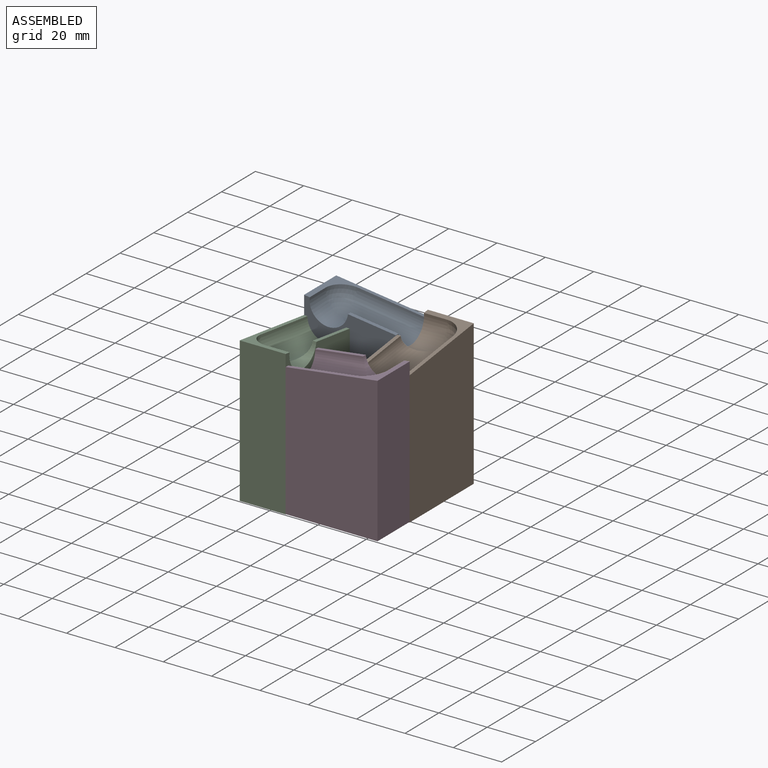
[diagram: assembled view]
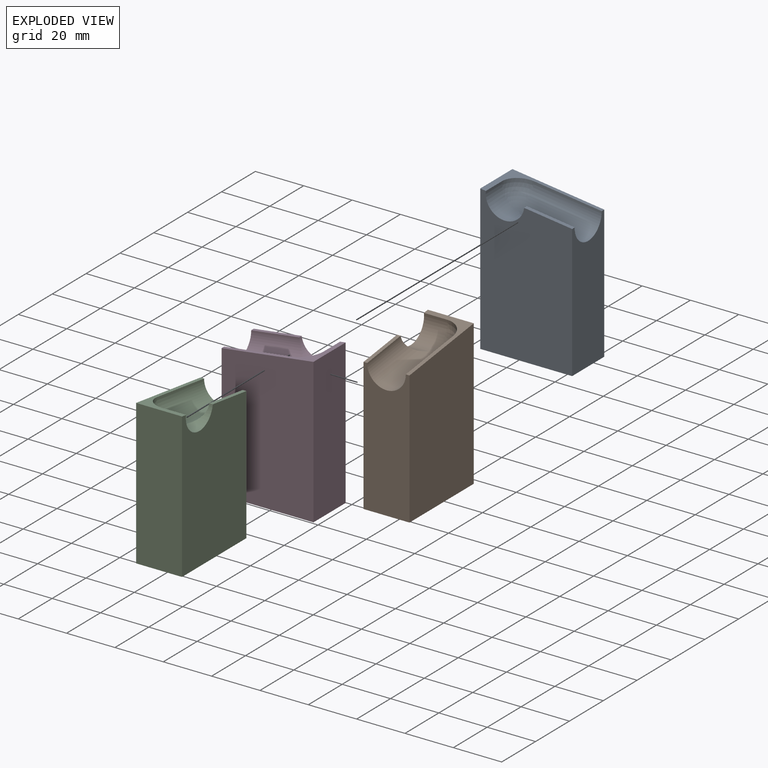
[diagram: exploded view]
GUIDED TOUR — MATED ASSEMBLY (Onshape document 01b825385db44bffe8441a78, AutoMate assembly 01b825385db44bffe8441a78_f958036a7d8260b53446cd34_9df18a49e7747a35df606ce9_default)

This assembly has 4 components, labeled P0..P3 below (a component is one placed occurrence of a part; the same part can appear more than once), held together by 3 mates. A mate is a constraint between two components; its type names the relative motion it leaves free:
  PLANAR — leaves sliding in the plane through the listed point (normal = the listed direction) and rotation about that normal free.
Axis/direction vectors are unit vectors and 'through' points are millimeter coordinates, both in the assembly's world frame.

MATES
  1. PLANAR "Planar 3": P2 <-> P3, direction (0.000, -1.000, 0.000) through (-11.81, -42.27, 26.96) mm
  2. PLANAR "Planar 1": P0 <-> P1, direction (0.000, 1.000, 0.000) through (7.30, 14.61, 27.07) mm
  3. PLANAR "Planar 2": P3 <-> P1, direction (1.000, 0.000, 0.000) through (26.20, -23.27, 27.09) mm

ASSEMBLY ORDER
  1. P1 — the base component [order verified]
  2. P0 [order verified]
  3. P2 [order verified]
  4. P3 [order verified]
Order-tag legend:
  [order verified] — this step's position reverses a verified removal order: the component was checked to insert without passing through the ones already placed.

Of the 4 components, 4 carry the full construction recipe — the FeatureScript program that regenerates the part's solid from scratch; the rest are supplied as boundary geometry only.
Each toured component is shown spotlighted twice — in the assembled view, then in the exploded view, where a leader line traces a displaced component back to its assembled socket (saturated green if recipe-attached, orange if geometry-only; every other component desaturated gray) — followed by its recipe or geometry summary and the mates that hold it.
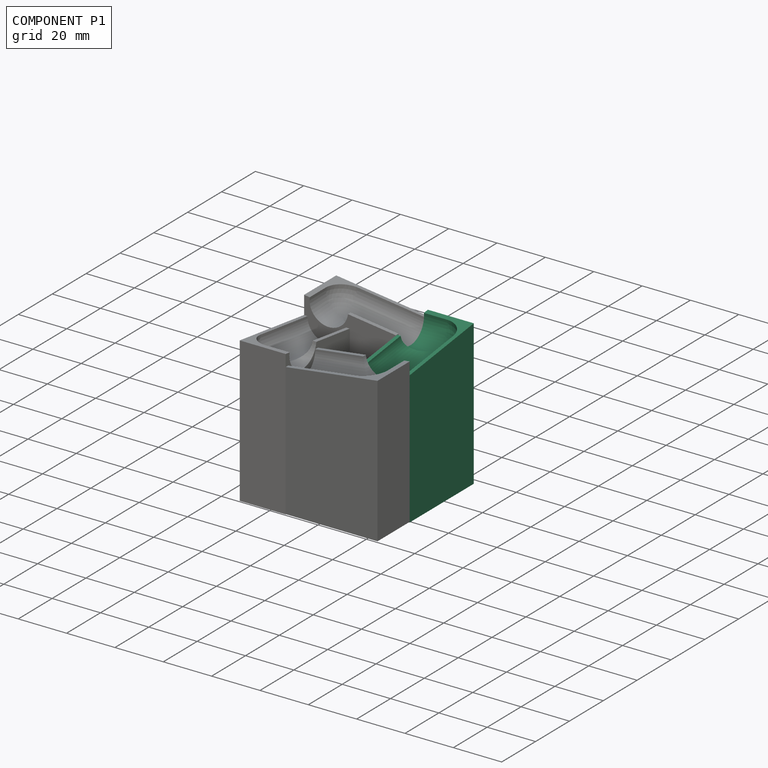
[diagram: component P1 — assembled]
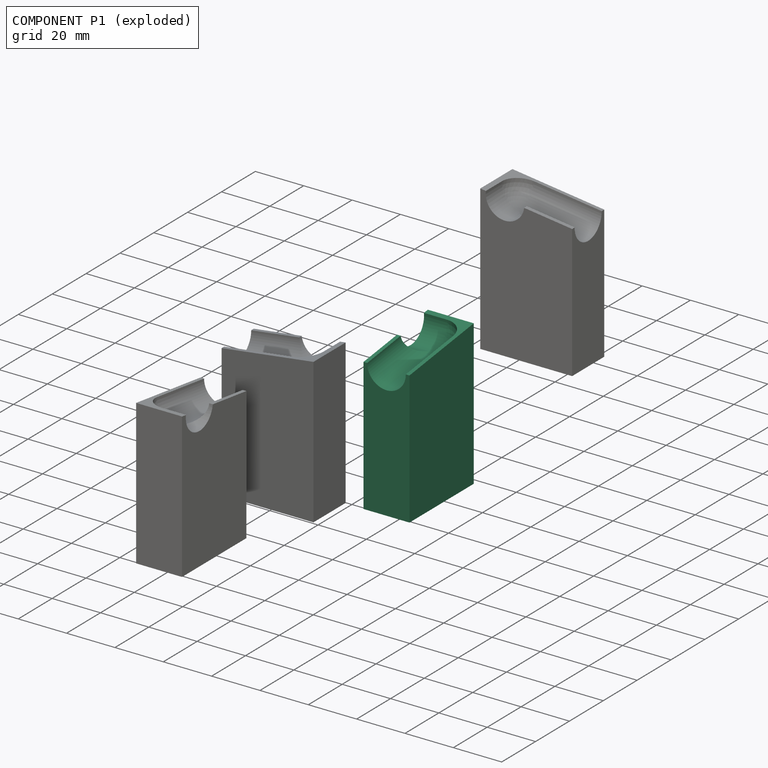
[diagram: component P1 — exploded]
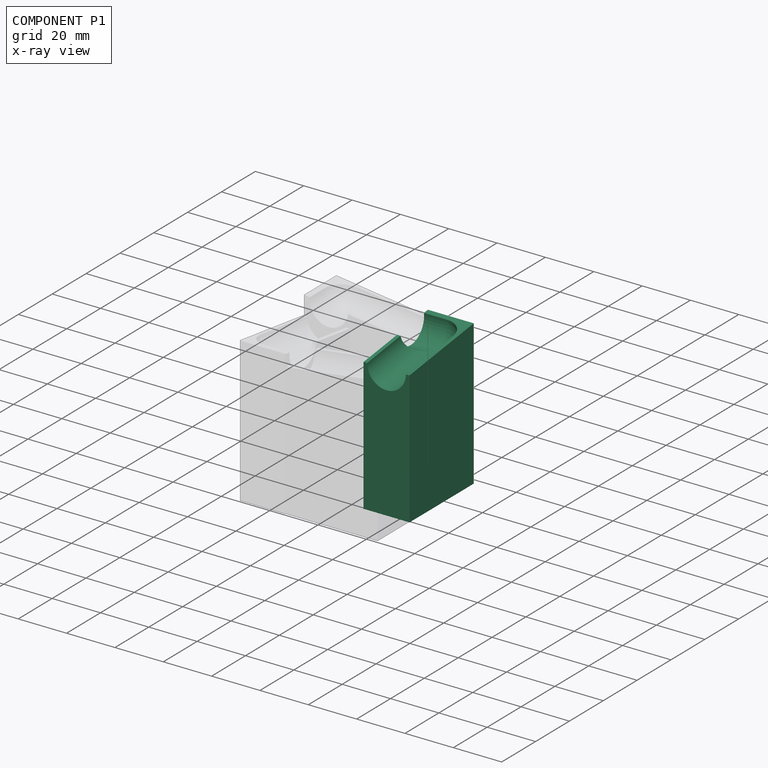
[diagram: component P1 — x-ray view]
COMPONENT P1 — same part as P0 (CADFS 00913248); its construction recipe is shown at P0.
Held by: PLANAR mate "Planar 1" to P0; PLANAR mate "Planar 2" to P3.
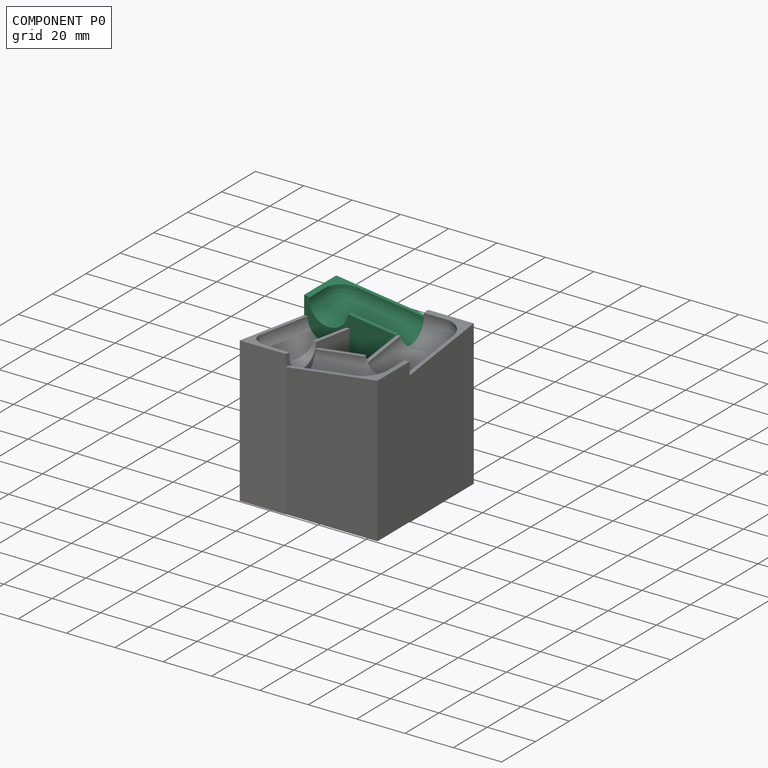
[diagram: component P0 — assembled]
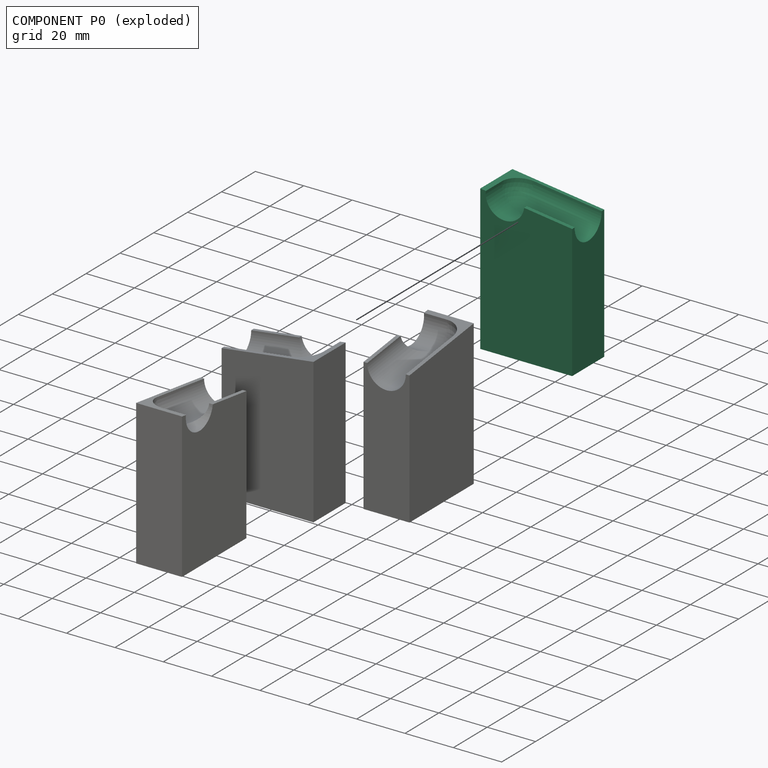
[diagram: component P0 — exploded]
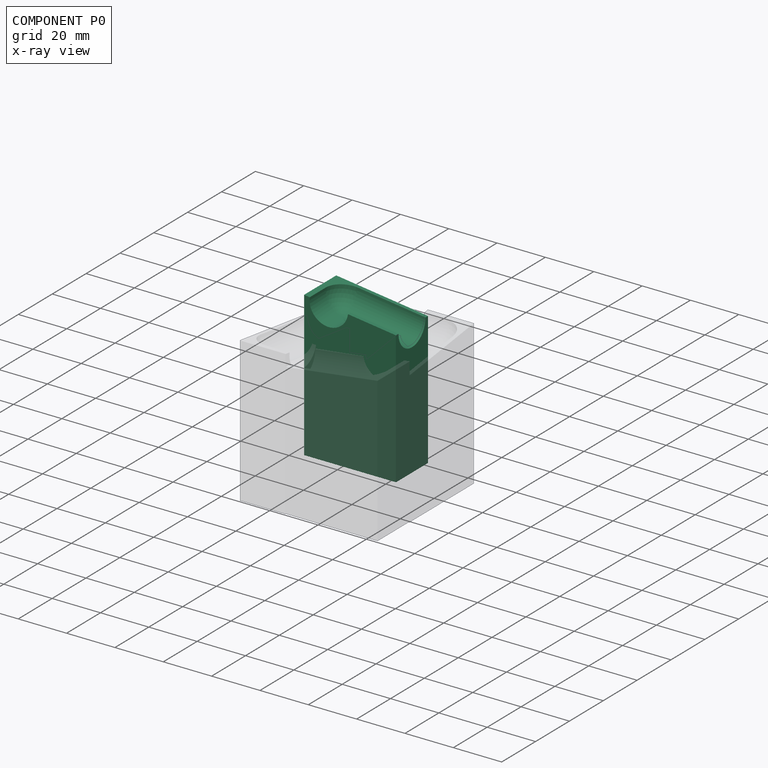
[diagram: component P0 — x-ray view]
COMPONENT P0 — recipe-attached (CADFS 00913248, mesh-verified: the recipe's output STEP matches this component's geometry to below the mesh-comparison resolution (tessellation chordal tolerance ~0.11 mm)).
Held by: PLANAR mate "Planar 1" to P1.
Construction recipe (FeatureScript — the CAD program that rebuilds this solid; sketch coordinates are in the units given by the * unit suffixes, e.g. mm):

FeatureScript 1511;
import(path : "onshape/std/geometry.fs", version : "1511.0");
import(path : "onshape/std/common.fs", version : "1511.0");
const mm = millimeter;
const VERTEX = EntityType.VERTEX;
const EDGE = EntityType.EDGE;
const FACE = EntityType.FACE;
const BODY = EntityType.BODY;
function v(x, y){return vector(x, y);}
function OD(order){return orderDisambiguation(order);}
function OSD(set){return originalSetDisambiguation(set);}
function TD(topology){return topologyDisambiguation(topology);}
function TDD(query){return trueDependencyDisambiguation(query);}
function sQuery(a, b, c) {return sketchEntityQuery(a, b, c);}

annotation { "Feature Type Name" : "Feature", "Feature Type Description" : "" }
export const myFeature = defineFeature(function(context is Context, id is Id, definition is map)
    precondition{}
    {
        {
            var Q0;
            Q0=qCreatedBy(makeId("Front.planeOp"),FACE);
            var sketch = newSketch(context, id + "F0", { "sketchPlane" : qUnion([Q0])});
            skLineSegment(sketch, "E0.bottom", {"start": v(0, 0) * mm, "end": v(-38, 0) * mm});
            skLineSegment(sketch, "E0.left", {"start": v(0, 0) * mm, "end": v(0, 55) * mm});
            skLineSegment(sketch, "E0.right", {"start": v(-38, 0) * mm, "end": v(-38, 60) * mm});
            skLineSegment(sketch, "E1", {"start": v(-38, 60) * mm, "end": v(0, 55) * mm});
            skLineSegment(sketch, "E2", {"start": v(0, 55) * mm, "end": v(-4.08, 23.96) * mm, "construction": true});
            skSolve(sketch);
        }
        {
            var Q0;
            Q0 = qSketchRegion(id + "F0", true);
            extrude(context, id + "F1", {"entities" : qUnion([Q0]), "oppositeDirection" : true, "depth" : 19 * mm, "offsetDistance" : 25.4 * mm});
        }
        {
            var Q0;
            Q0=sQuery(id+"F0.wireOp",VERTEX,"E0.left.end");
            var Q1;
            Q1=sQuery(id+"F0.wireOp",VERTEX,"E2.end");
            var Q2;
            Q2=makeQuery(id+"F1.opExtrude","CAP_VERTEX",VERTEX,{"disambiguationData":[OSD([sQuery(id+"F0.wireOp",EDGE,"E0.left"),sQuery(id+"F0.wireOp",EDGE,"E1")])],"isStart":false});
            cPlane(context, id + "F2", {"entities" : qUnion([Q0, Q1, Q2]), "cplaneType" : CPlaneType.THREE_POINT, "offset" : 10 * mm, "width" : 152.4 * mm, "height" : 152.4 * mm});
        }
        {
            var Q0;
            Q0=qCreatedBy(id+"F2.planeOp",FACE);
            var sketch = newSketch(context, id + "F3", { "sketchPlane" : qUnion([Q0])});
            skArc(sketch, "E3", {"start": v(-17.5, 54.53) * mm, "mid": v(-9.5, 46.53) * mm, "end": v(-1.5, 54.53) * mm});
            skLineSegment(sketch, "E4", {"start": v(-1.5, 54.53) * mm, "end": v(-17.5, 54.53) * mm});
            skSolve(sketch);
        }
        {
            var Q0;
            Q0 = qSketchRegion(id + "F3", true);
            extrude(context, id + "F4", {"entities" : qUnion([Q0]), "operationType" : NewBodyOperationType.REMOVE, "endBound" : BoundingType.SYMMETRIC, "depth" : 56 * mm, "offsetDistance" : 25 * mm});
        }
        {
            var Q0;
            Q0=makeQuery(id+"F4.boolean.opBoolean","COPY",FACE,{"derivedFrom":makeQuery(id+"F4.opExtrude","CAP_FACE",FACE,{"disambiguationData":[OSD([sQuery(id+"F3.wireOp",EDGE,"E3"),sQuery(id+"F3.wireOp",EDGE,"E4")])],"isStart":false})});
            cPlane(context, id + "F5", {"entities" : qUnion([Q0]), "cplaneType" : CPlaneType.OFFSET, "offset" : 0 * mm, "width" : 150 * mm, "height" : 150 * mm});
        }
        {
            var Q0;
            Q0=qCreatedBy(id+"F5.planeOp",FACE);
            var sketch = newSketch(context, id + "F6", { "sketchPlane" : qUnion([Q0])});
            skLineSegment(sketch, "E5", {"start": v(1.5, 54.53) * mm, "end": v(0, 54.53) * mm, "construction": true});
            skArc(sketch, "E6", {"start": v(17.5, 54.53) * mm, "mid": v(15.16, 48.87) * mm, "end": v(9.5, 46.53) * mm});
            skLineSegment(sketch, "E7", {"start": v(9.5, 46.53) * mm, "end": v(9.5, 54.53) * mm});
            skLineSegment(sketch, "E8", {"start": v(9.5, 54.53) * mm, "end": v(17.5, 54.53) * mm});
            skSolve(sketch);
        }
        {
            var Q0;
            Q0 = qSketchRegion(id + "F6", true);
            var Q1;
            Q1=sQuery(id+"F6.wireOp",EDGE,"E7");
            revolve(context, id + "F7", {"operationType" : NewBodyOperationType.REMOVE, "surfaceOperationType" : NewSurfaceOperationType.NEW, "entities" : qUnion([Q0]), "axis" : qUnion([Q1]), "revolveType" : RevolveType.FULL, "oppositeDirection" : true});
        }
        {
            var Q0;
            Q0=qCreatedBy(makeId("Front.planeOp"),FACE);
            var sketch = newSketch(context, id + "F8", { "sketchPlane" : qUnion([Q0])});
            skArc(sketch, "E9", {"start": v(-19.83, 57.6) * mm, "mid": v(-28.8, 50.72) * mm, "end": v(-35.7, 59.7) * mm});
            skLineSegment(sketch, "E10", {"start": v(-35.7, 59.7) * mm, "end": v(-19.83, 57.6) * mm});
            skSolve(sketch);
        }
        {
            var Q0;
            Q0 = qSketchRegion(id + "F8", true);
            extrude(context, id + "F9", {"entities" : qUnion([Q0]), "operationType" : NewBodyOperationType.REMOVE, "oppositeDirection" : true, "depth" : 9.5 * mm, "offsetDistance" : 25 * mm});
        }
    });
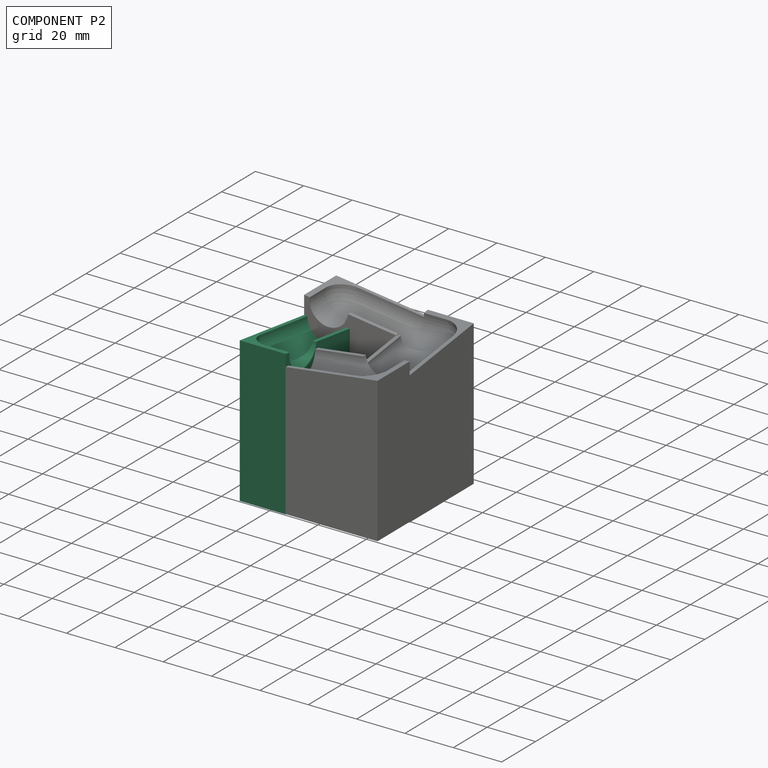
[diagram: component P2 — assembled]
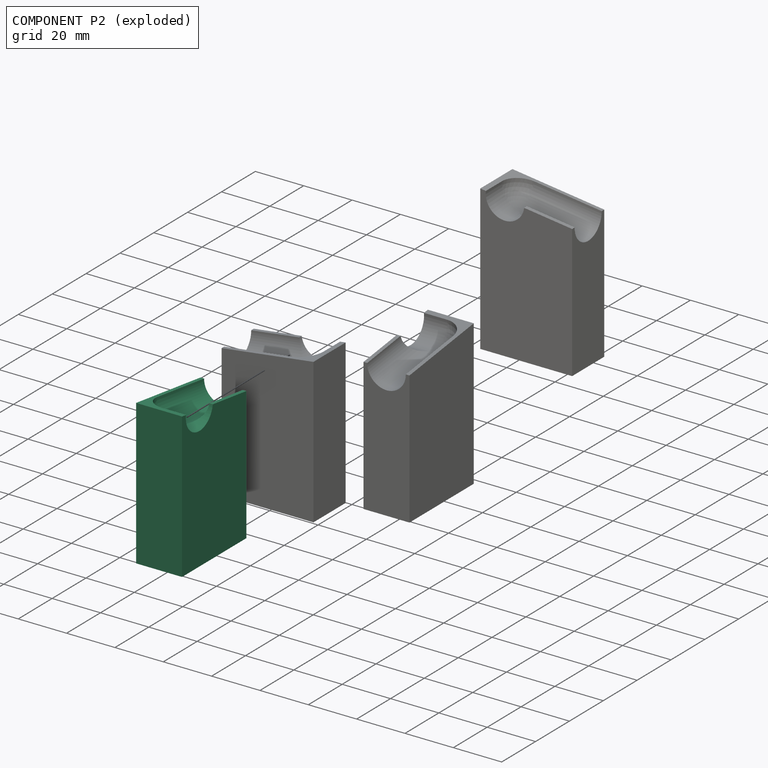
[diagram: component P2 — exploded]
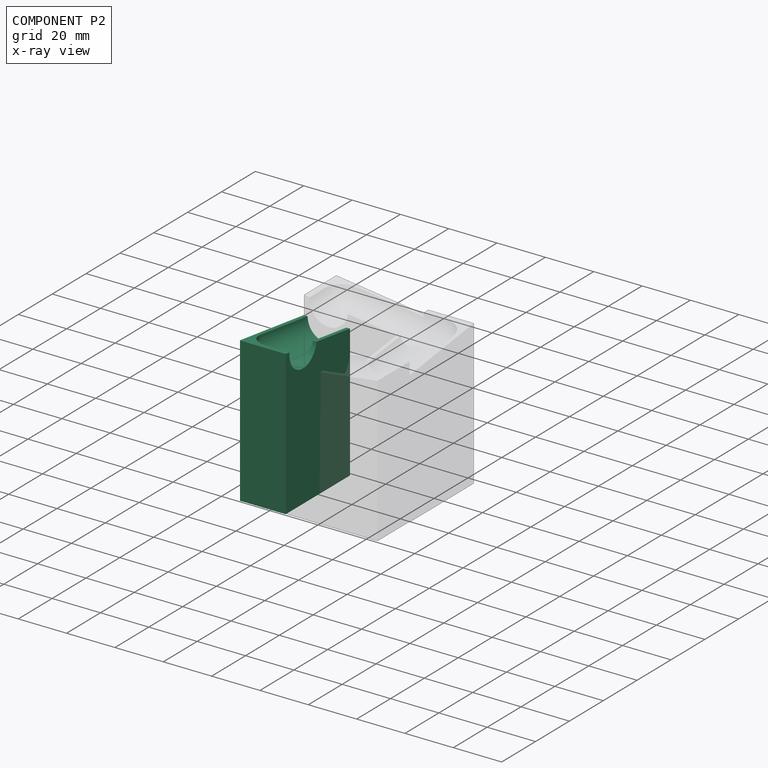
[diagram: component P2 — x-ray view]
COMPONENT P2 — same part as P0 (CADFS 00913248); its construction recipe is shown at P0.
Held by: PLANAR mate "Planar 3" to P3.
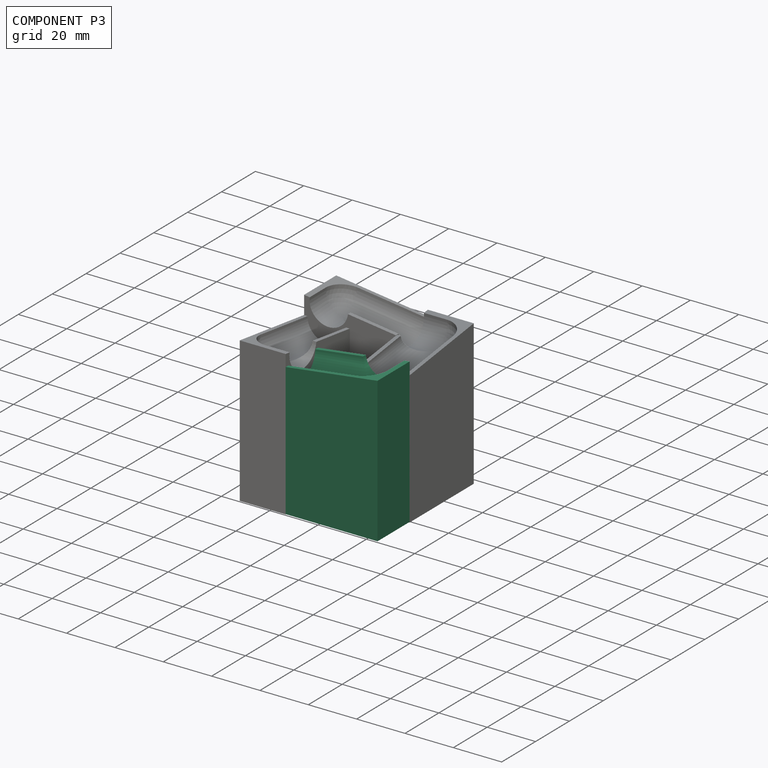
[diagram: component P3 — assembled]
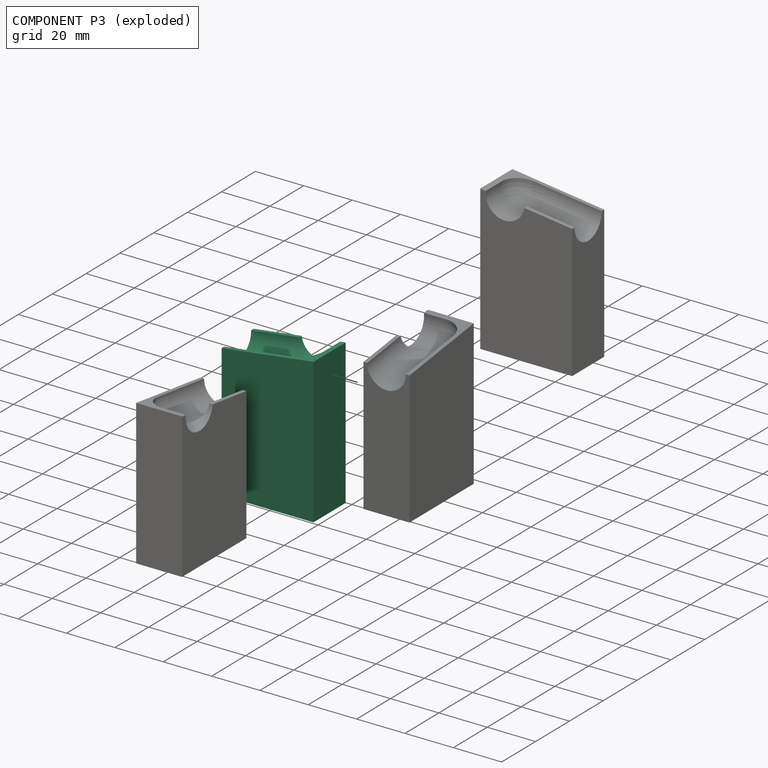
[diagram: component P3 — exploded]
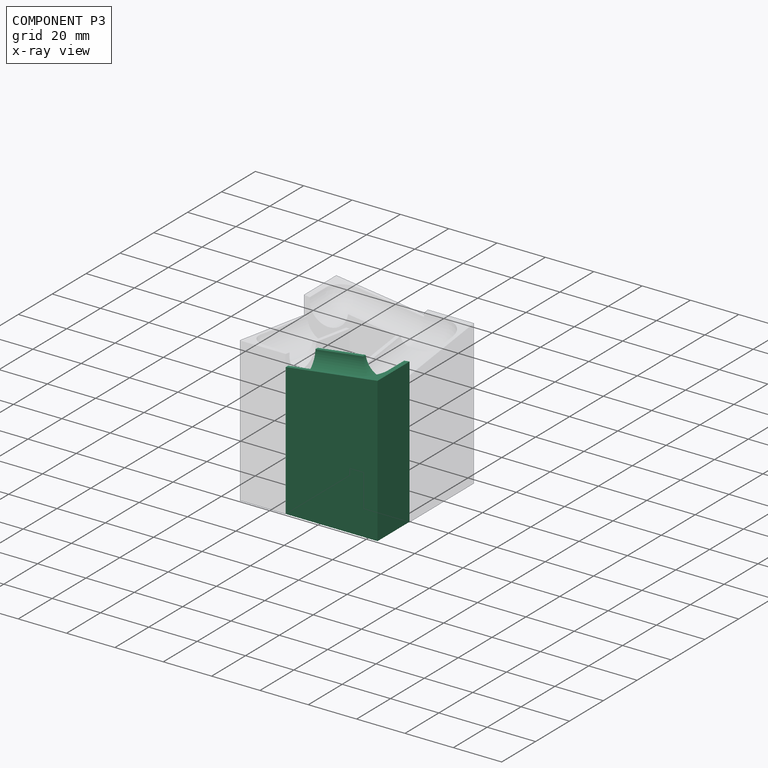
[diagram: component P3 — x-ray view]
COMPONENT P3 — same part as P0 (CADFS 00913248); its construction recipe is shown at P0.
Held by: PLANAR mate "Planar 3" to P2; PLANAR mate "Planar 2" to P1.
PROVENANCE & LICENSES
Assembly (occurrences, transforms, mates, per-part STEP geometry): AutoMate dataset, Zenodo record 7776208, CC0.
Construction recipes: CADFS (HuggingFace VladPyatov/CADFS, CC-BY-4.0, layered over the ABC dataset), FeatureScript reconstruction programs keyed by ABC model id.
Join: ABC meta listings map ABC model id -> Onshape documentId; within a shared document, parts are matched by geometric signature (bounding-box dims + volume at 0.1% relative tolerance, exact B-rep face/solid counts).
Verification: 4 of this assembly's 4 components carry a recipe attachment, and every attachment is mesh-verified: the CADFS STEP and the AutoMate member STEP were compared as meshes in their shared local frame (symmetric sampled-point-to-mesh distance); worst across the 4 attachments: below the mesh-comparison resolution (tessellation chordal tolerance ~0.11 mm) on a 74 mm part.
Renders: orthographic iso camera (az 35 / el 25); the floor grid conveys scale (grid pitch printed in each image; no ruler). In the exploded view each component is displaced by its stored offset vector: the offsets alone carry the explosion direction (mate normal/axis signs are not orientation cues and do not encode it), and separation distances are assigned per mate-chain, not proportionally to assembly-order depth.
